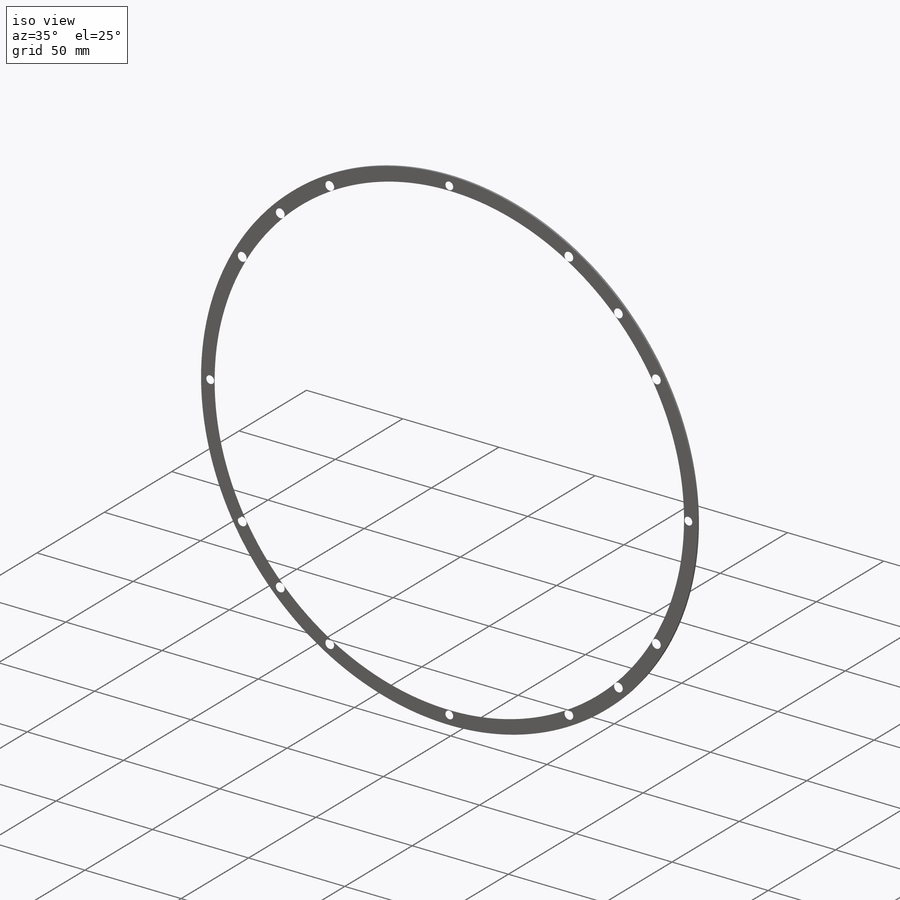
[diagram: iso view]
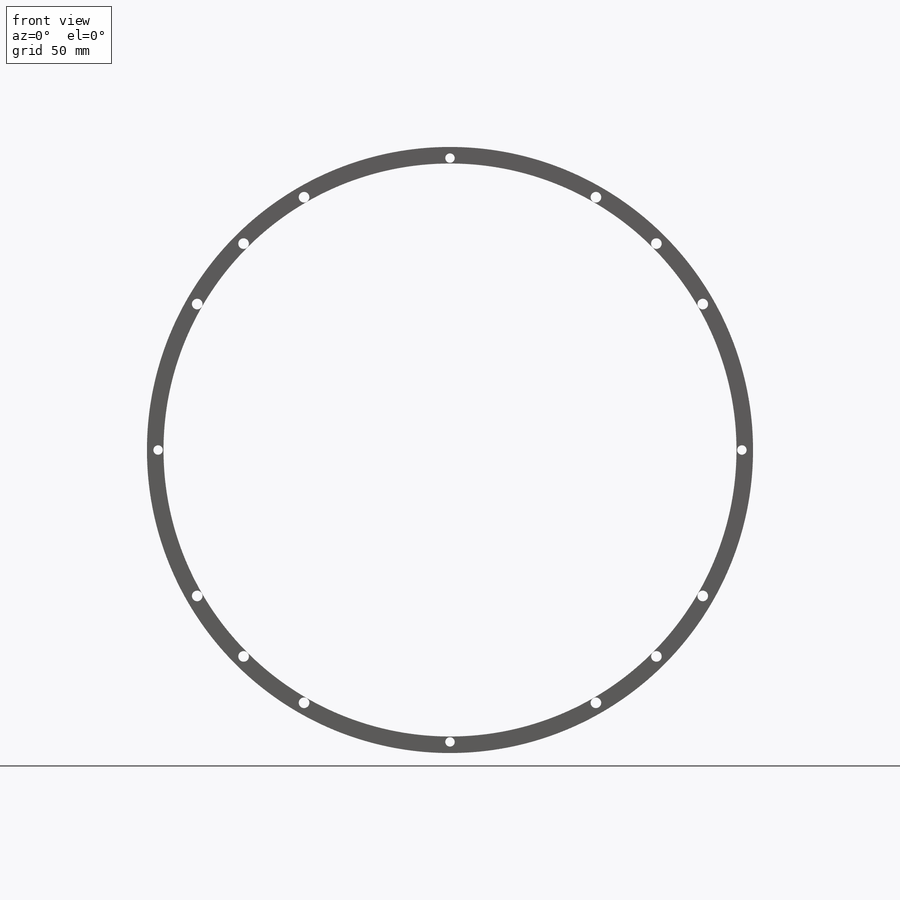
[diagram: front view]
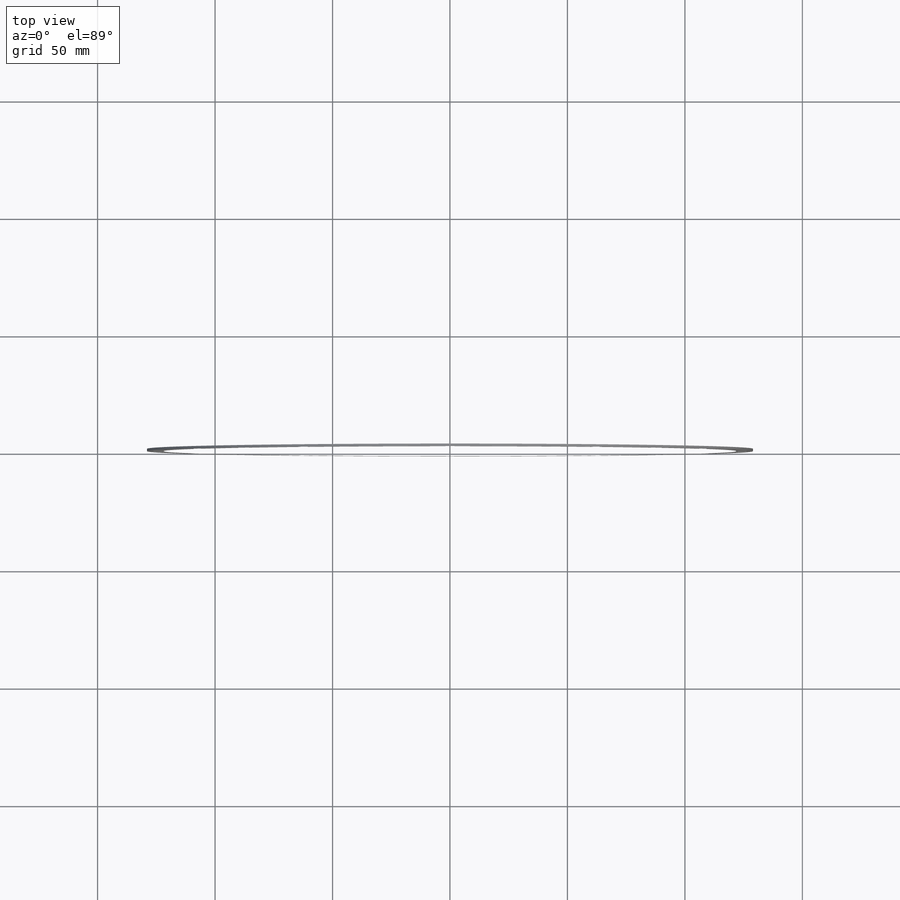
[diagram: top view]
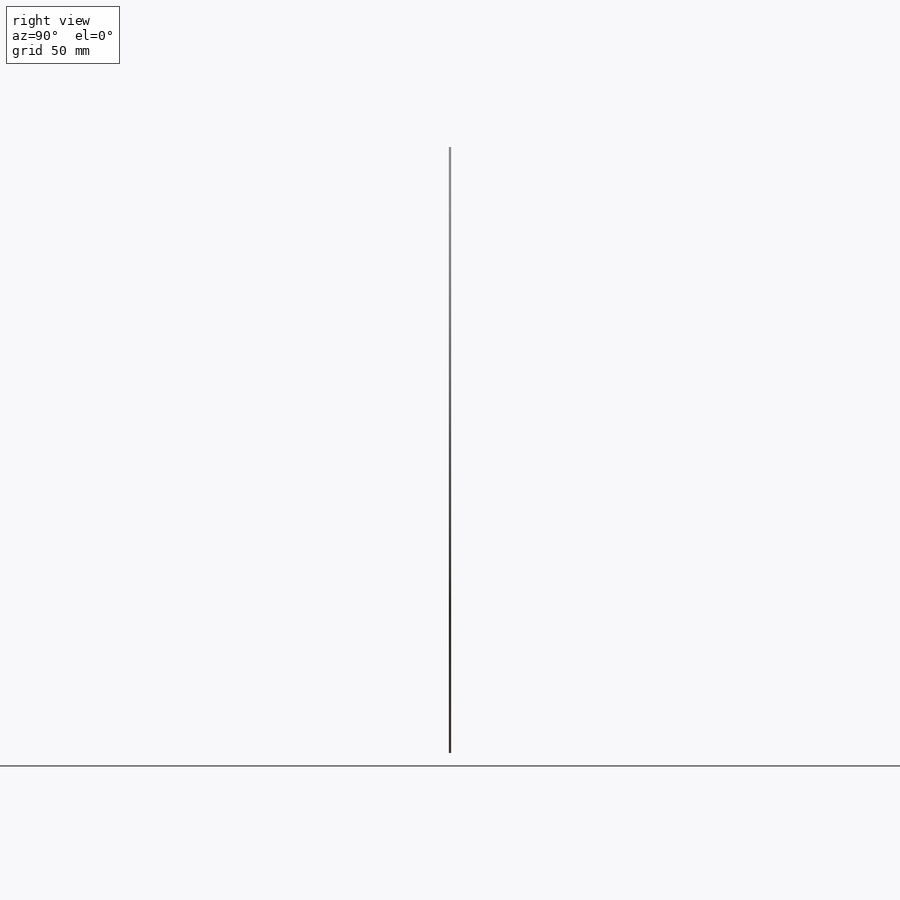
[diagram: right view]
SOLIDWORKS PART (.sldprt)
format: sldprt  version: not decoded by parser v0  size: 1,558,528 bytes
history: native  units: mm
features: sketch x7, hole x3, pattern_circular x3, material x1, revolve x1 (+11 scaffold rows collapsed)
feature tree (26):
  scaffold x11  (default folders/planes/origin — collapsed)
  material  "Thornel VCB-20 Carbon Cloth"
  sketch  "Sketch1"  dims[c1.D1=3.0mm c1.D2=2.0mm c1.D3=1.0mm c1.D4=1.0mm c1.D5=10.5mm c1.D6=28.0mm c1.D7=237.9mm c2.D5=129.0mm]
  revolve  "Revolve1"  Angle=360deg
  hole  "Ø4.5 (4.5) Diameter Hole1"  Diameter=4.5mm Depth=1mm
  sketch  "Sketch3"  dims[D1=124.25mm D2=30.0deg]
  sketch  "Sketch4"  dims[hole-wizard template sketch: 61 standard entries collapsed; hole parameters above]
  pattern_circular  "CirPattern1"  Count=12 Angle=360deg
  hole  "Ø4.0 (4) Diameter Hole1"  Diameter=4mm Depth=1mm
  sketch  "Sketch6"
  sketch  "Sketch5"  dims[hole-wizard template sketch: 61 standard entries collapsed; hole parameters above]
  pattern_circular  "CirPattern2"  Count=4 Angle=360deg
  hole  "Ø4.5 (4.5) Diameter Hole2"  Diameter=4.5mm Depth=1.5mm
  sketch  "Sketch8"  dims[c1.D1=124.25mm c2.D1=45.0deg]
  sketch  "Sketch7"  dims[hole-wizard template sketch: 47 standard entries collapsed; hole parameters kept: c15.Hole Depth=1.5mm c15.D3=~14.816244mm c15.Drill Angle=118.0deg]
  pattern_circular  "CirPattern3"  Count=4 Angle=360deg
decode coverage: 13 of 14 modeling features carry decoded parameters
note: ~ marks probable driven/reference dimensions
note: suppression state not decoded; provenance and decode notes live in map.json
